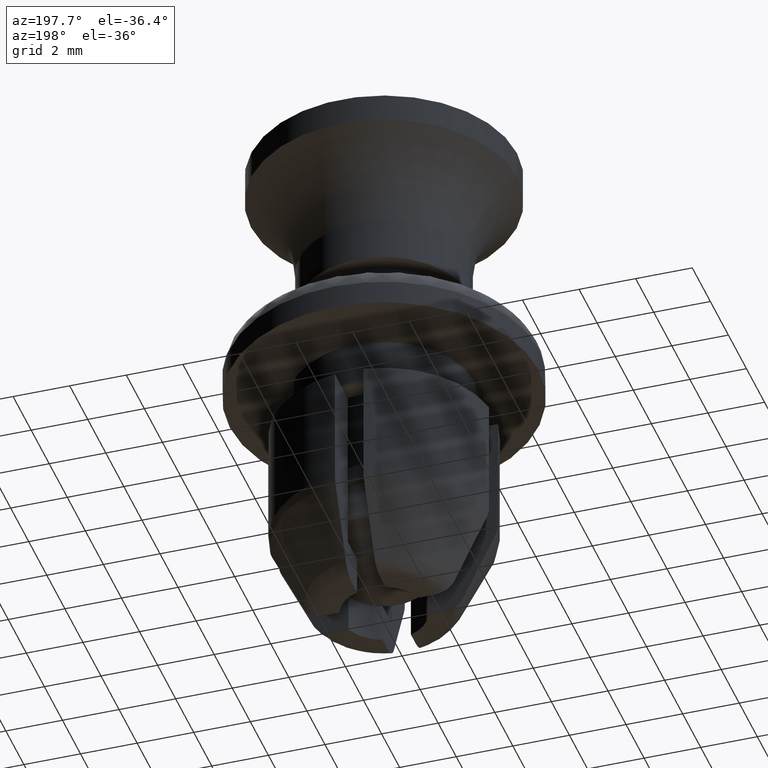
[diagram: clean part render]
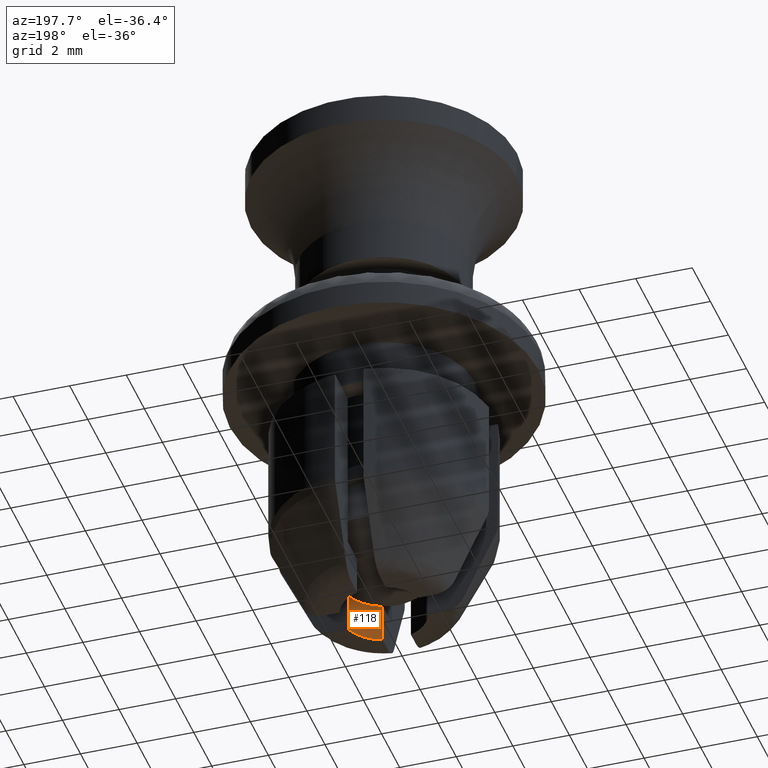
[diagram: same view with one face highlighted and labeled with its STEP entity id]
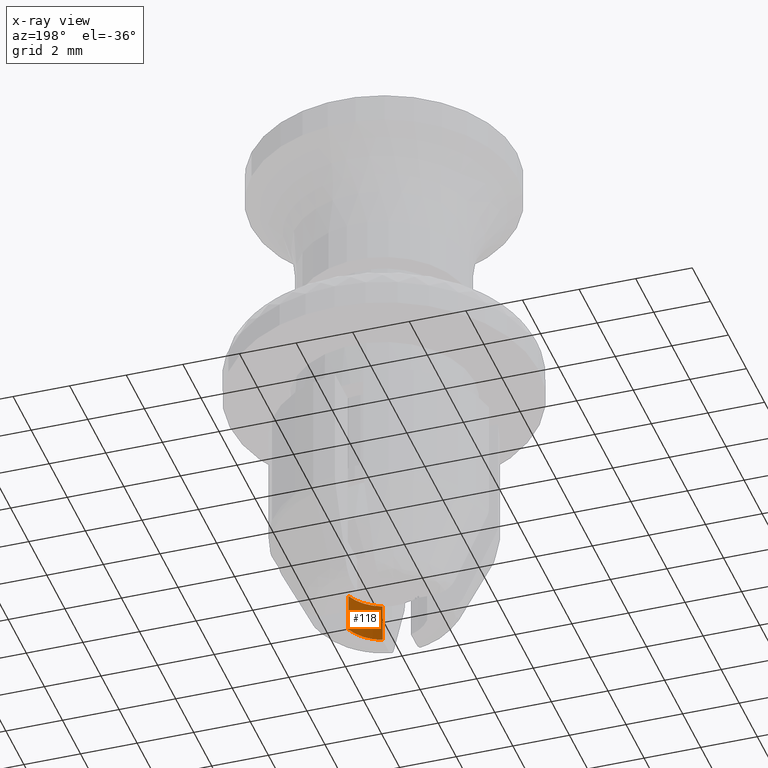
[diagram: x-ray of the same camera — body ghosted, the highlighted face saturated]
A machine part, auxiliary view. The second image highlights one B-rep face of the part: STEP entity #118.
The next image is the same camera in x-ray: the body ghosted, the highlighted face saturated — about 0% of this face is hidden behind the body in this view.
In plain terms, the highlighted cylindrical surface (partial cylindrical patch) has radius 1.5 mm, axis along (-0, -0, -1).
Its self-contained STEP definition (entity closure, byte-faithful):
#118=ADVANCED_FACE('',(#253),#252,.F.);
#252=CYLINDRICAL_SURFACE('',#1041,1.50000000000E+00);
#253=FACE_OUTER_BOUND('',#1042,.T.);
#1038=CARTESIAN_POINT('',(0.00000000000E+00,0.00000000000E+00,-1.00360000000E+03));
#1039=DIRECTION('',(-0.00000000000E+00,-0.00000000000E+00,-1.00000000000E+00));
#1040=DIRECTION('',(-1.00000000000E+00,-0.00000000000E+00,-0.00000000000E+00));
#1041=AXIS2_PLACEMENT_3D('',#1038,#1039,#1040);
#1042=EDGE_LOOP('',(#1660,#1661,#1662,#1663));
#1660=ORIENTED_EDGE('',*,*,#2043,.T.);
#1661=ORIENTED_EDGE('',*,*,#2051,.T.);
#1662=ORIENTED_EDGE('',*,*,#2052,.F.);
#1663=ORIENTED_EDGE('',*,*,#2053,.T.);
#2043=EDGE_CURVE('',#2509,#2502,#2510,.T.);
#2051=EDGE_CURVE('',#2502,#2564,#2565,.T.);
#2052=EDGE_CURVE('',#2571,#2564,#2572,.T.);
#2053=EDGE_CURVE('',#2571,#2509,#2578,.T.);
#2502=VERTEX_POINT('',#3702);
#2509=VERTEX_POINT('',#3706);
#2510=LINE('',#3707,#3708);
#2564=VERTEX_POINT('',#3744);
#2565=CIRCLE('',#3748,1.50000000000E+00);
#2571=VERTEX_POINT('',#3749);
#2572=LINE('',#3750,#3751);
#2578=CIRCLE('',#3756,1.50000000000E+00);
#3702=CARTESIAN_POINT('',(5.00000000000E-01,-1.41421356237E+00,-9.60030000000E+00));
#3706=CARTESIAN_POINT('',(5.00000000000E-01,-1.41421356237E+00,-1.10003000000E+01));
#3707=CARTESIAN_POINT('',(5.00000000000E-01,-1.41421356237E+00,-1.10003000000E+01));
#3708=VECTOR('',#3709,1.40000000000E+00);
#3709=DIRECTION('',(0.00000000000E+00,0.00000000000E+00,1.00000000000E+00));
#3744=CARTESIAN_POINT('',(1.41421356237E+00,-5.00000000000E-01,-9.60030000000E+00));
#3745=CARTESIAN_POINT('',(0.00000000000E+00,0.00000000000E+00,-9.60030000000E+00));
#3746=DIRECTION('',(0.00000000000E+00,-0.00000000000E+00,1.00000000000E+00));
#3747=DIRECTION('',(1.00000000000E+00,-0.00000000000E+00,-0.00000000000E+00));
#3748=AXIS2_PLACEMENT_3D('',#3745,#3746,#3747);
#3749=CARTESIAN_POINT('',(1.41421356237E+00,-5.00000000000E-01,-1.10003000000E+01));
#3750=CARTESIAN_POINT('',(1.41421356237E+00,-5.00000000000E-01,-1.10003000000E+01));
#3751=VECTOR('',#3752,1.40000000000E+00);
#3752=DIRECTION('',(0.00000000000E+00,0.00000000000E+00,1.00000000000E+00));
#3753=CARTESIAN_POINT('',(0.00000000000E+00,0.00000000000E+00,-1.10003000000E+01));
#3754=DIRECTION('',(0.00000000000E+00,0.00000000000E+00,-1.00000000000E+00));
#3755=DIRECTION('',(-1.00000000000E+00,-0.00000000000E+00,-0.00000000000E+00));
#3756=AXIS2_PLACEMENT_3D('',#3753,#3754,#3755);